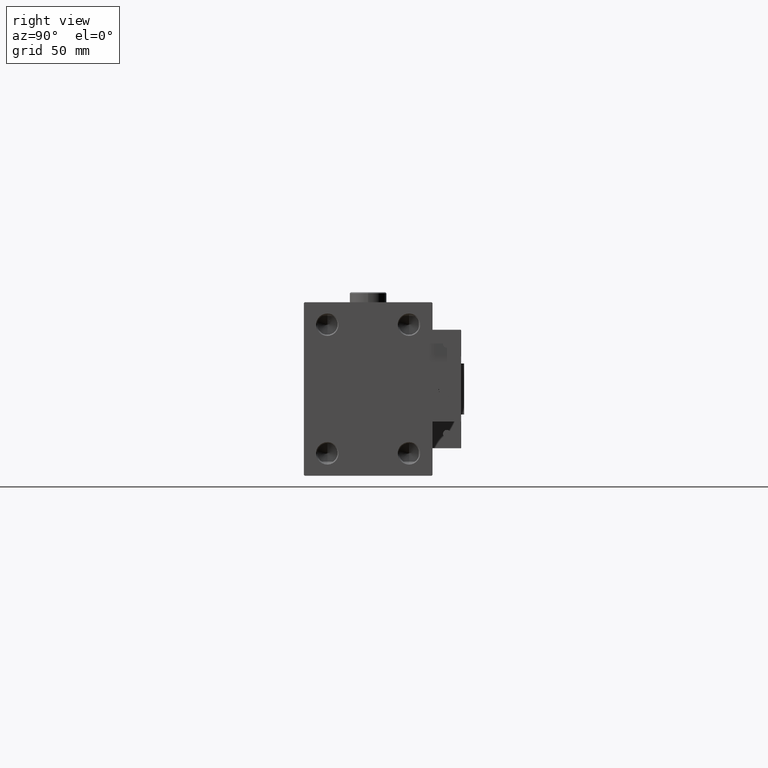
[diagram: clean part render]
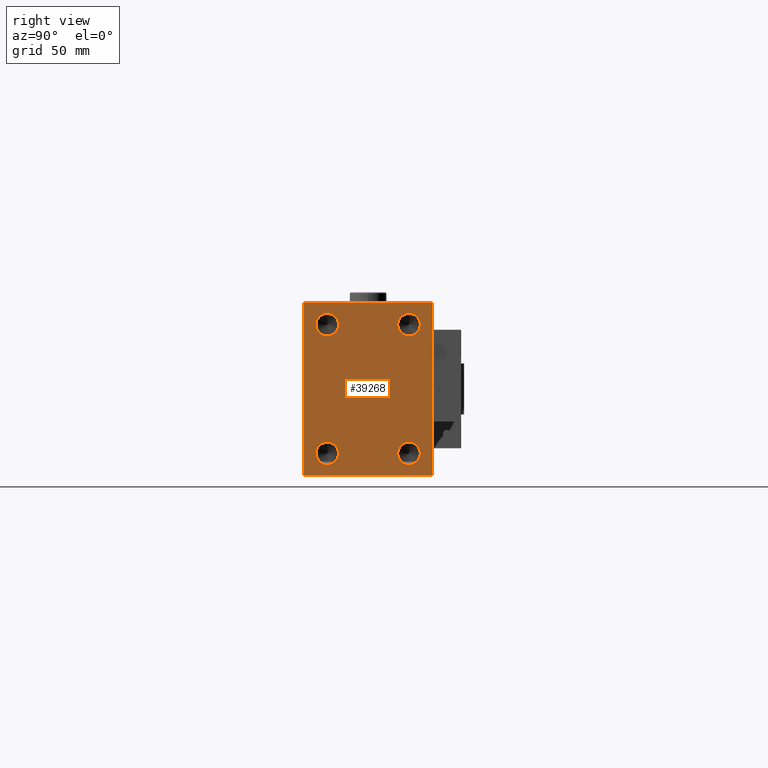
[diagram: same view with one face highlighted and labeled with its STEP entity id]
A machine part, right view. The second image highlights one B-rep face of the part: STEP entity #39268.
In plain terms, the highlighted planar face has unit normal (1, 0, 0).
Its self-contained STEP definition (entity closure, byte-faithful):
#1403 = VERTEX_POINT ( 'NONE', #37232 ) ;
#2244 = CARTESIAN_POINT ( 'NONE',  ( 263.0000000000000000, 36.74999999999909761, 36.75000000000113687 ) ) ;
#3032 = ORIENTED_EDGE ( 'NONE', *, *, #12570, .T. ) ;
#3068 = ORIENTED_EDGE ( 'NONE', *, *, #32331, .F. ) ;
#3200 = PLANE ( 'NONE',  #10464 ) ;
#3679 = AXIS2_PLACEMENT_3D ( 'NONE', #35292, #31049, #18578 ) ;
#4869 = VERTEX_POINT ( 'NONE', #45011 ) ;
#4917 = ORIENTED_EDGE ( 'NONE', *, *, #41886, .F. ) ;
#5029 = ORIENTED_EDGE ( 'NONE', *, *, #52492, .T. ) ;
#5167 = EDGE_LOOP ( 'NONE', ( #36747, #18878, #27751, #3032, #12417, #21081, #39753, #5029 ) ) ;
#5576 = EDGE_CURVE ( 'NONE', #6405, #20057, #34825, .T. ) ;
#6396 = CARTESIAN_POINT ( 'NONE',  ( 263.0000000000000000, -36.75000000000083134, 36.74999999999879208 ) ) ;
#6405 = VERTEX_POINT ( 'NONE', #24512 ) ;
#6707 = LINE ( 'NONE', #35121, #19873 ) ;
#6725 = CARTESIAN_POINT ( 'NONE',  ( 263.0000000000000000, 31.50000000000001421, -41.99999999999997868 ) ) ;
#7141 = CARTESIAN_POINT ( 'NONE',  ( 263.0000000000000000, 19.99999999999999645, -26.00000000000004619 ) ) ;
#7568 = CARTESIAN_POINT ( 'NONE',  ( 263.0000000000000000, 31.50000000000001421, -42.50000000000000711 ) ) ;
#8918 = ORIENTED_EDGE ( 'NONE', *, *, #50925, .F. ) ;
#9533 = DIRECTION ( 'NONE',  ( 0.000000000000000000, 0.000000000000000000, -1.000000000000000000 ) ) ;
#9672 = CARTESIAN_POINT ( 'NONE',  ( 263.0000000000000000, 19.99999999999999645, 31.50000000000000000 ) ) ;
#10367 = CARTESIAN_POINT ( 'NONE',  ( 263.0000000000000000, -20.00000000000000355, 31.50000000000000000 ) ) ;
#10464 = AXIS2_PLACEMENT_3D ( 'NONE', #23903, #48360, #12200 ) ;
#10645 = ORIENTED_EDGE ( 'NONE', *, *, #16796, .F. ) ;
#11292 = DIRECTION ( 'NONE',  ( 0.000000000000000000, -1.632680918566406547E-16, 1.000000000000000000 ) ) ;
#11343 = AXIS2_PLACEMENT_3D ( 'NONE', #12000, #33229, #44437 ) ;
#11617 = EDGE_CURVE ( 'NONE', #4869, #29313, #24806, .T. ) ;
#11830 = VECTOR ( 'NONE', #18109, 1000.000000000000000 ) ;
#12000 = CARTESIAN_POINT ( 'NONE',  ( 263.0000000000000000, 19.99999999999999645, -31.50000000000000000 ) ) ;
#12200 = DIRECTION ( 'NONE',  ( 0.000000000000000000, 0.000000000000000000, -1.000000000000000000 ) ) ;
#12417 = ORIENTED_EDGE ( 'NONE', *, *, #5576, .T. ) ;
#12570 = EDGE_CURVE ( 'NONE', #42742, #6405, #25558, .T. ) ;
#13523 = DIRECTION ( 'NONE',  ( 1.000000000000000000, -0.000000000000000000, -0.000000000000000000 ) ) ;
#14162 = DIRECTION ( 'NONE',  ( 1.000000000000000000, -0.000000000000000000, -0.000000000000000000 ) ) ;
#15505 = VERTEX_POINT ( 'NONE', #21867 ) ;
#16327 = VERTEX_POINT ( 'NONE', #31987 ) ;
#16651 = EDGE_CURVE ( 'NONE', #49942, #39796, #35069, .T. ) ;
#16796 = EDGE_CURVE ( 'NONE', #21577, #47852, #24044, .T. ) ;
#17308 = DIRECTION ( 'NONE',  ( -0.000000000000000000, 0.7071067811865426878, -0.7071067811865524577 ) ) ;
#17442 = VERTEX_POINT ( 'NONE', #47116 ) ;
#17496 = EDGE_CURVE ( 'NONE', #39796, #49942, #30855, .T. ) ;
#17502 = CARTESIAN_POINT ( 'NONE',  ( 263.0000000000000000, -31.50000000000000000, -41.99999999999997158 ) ) ;
#18109 = DIRECTION ( 'NONE',  ( 0.000000000000000000, 1.000000000000000000, 0.000000000000000000 ) ) ;
#18418 = DIRECTION ( 'NONE',  ( 0.000000000000000000, 0.000000000000000000, -1.000000000000000000 ) ) ;
#18442 = DIRECTION ( 'NONE',  ( 0.000000000000000000, 0.000000000000000000, -1.000000000000000000 ) ) ;
#18578 = DIRECTION ( 'NONE',  ( 0.000000000000000000, 0.000000000000000000, -1.000000000000000000 ) ) ;
#18874 = EDGE_CURVE ( 'NONE', #37688, #15505, #25809, .T. ) ;
#18878 = ORIENTED_EDGE ( 'NONE', *, *, #18874, .T. ) ;
#19873 = VECTOR ( 'NONE', #38076, 1000.000000000000000 ) ;
#19925 = FACE_BOUND ( 'NONE', #45086, .T. ) ;
#20057 = VERTEX_POINT ( 'NONE', #24548 ) ;
#20787 = EDGE_CURVE ( 'NONE', #30769, #1403, #31221, .T. ) ;
#21081 = ORIENTED_EDGE ( 'NONE', *, *, #34115, .T. ) ;
#21210 = CARTESIAN_POINT ( 'NONE',  ( 263.0000000000000000, 19.99999999999999645, 26.00000000000004619 ) ) ;
#21235 = DIRECTION ( 'NONE',  ( 0.000000000000000000, 0.000000000000000000, -1.000000000000000000 ) ) ;
#21459 = CARTESIAN_POINT ( 'NONE',  ( 263.0000000000000000, -20.00000000000000355, -31.50000000000000000 ) ) ;
#21558 = DIRECTION ( 'NONE',  ( 0.000000000000000000, -0.7071067811865279218, -0.7071067811865671127 ) ) ;
#21577 = VERTEX_POINT ( 'NONE', #24167 ) ;
#21867 = CARTESIAN_POINT ( 'NONE',  ( 263.0000000000000000, -31.50000000000000000, 41.99999999999990763 ) ) ;
#21982 = EDGE_LOOP ( 'NONE', ( #10645, #3068 ) ) ;
#22440 = DIRECTION ( 'NONE',  ( 1.000000000000000000, -0.000000000000000000, -0.000000000000000000 ) ) ;
#23028 = ORIENTED_EDGE ( 'NONE', *, *, #11617, .F. ) ;
#23903 = CARTESIAN_POINT ( 'NONE',  ( 263.0000000000000000, 0.000000000000000000, 0.000000000000000000 ) ) ;
#24044 = CIRCLE ( 'NONE', #27414, 5.499999999999976907 ) ;
#24167 = CARTESIAN_POINT ( 'NONE',  ( 263.0000000000000000, -20.00000000000000355, 36.99999999999995026 ) ) ;
#24198 = CARTESIAN_POINT ( 'NONE',  ( 263.0000000000000000, 36.74999999999999289, -36.74999999999999289 ) ) ;
#24462 = LINE ( 'NONE', #24198, #46818 ) ;
#24512 = CARTESIAN_POINT ( 'NONE',  ( 263.0000000000000000, -30.99999999999997158, -42.50000000000000711 ) ) ;
#24548 = CARTESIAN_POINT ( 'NONE',  ( 263.0000000000000000, 30.99999999999998579, -42.50000000000000711 ) ) ;
#24806 = CIRCLE ( 'NONE', #50283, 5.499999999999976907 ) ;
#25419 = ORIENTED_EDGE ( 'NONE', *, *, #17496, .F. ) ;
#25492 = AXIS2_PLACEMENT_3D ( 'NONE', #37573, #22440, #18442 ) ;
#25558 = LINE ( 'NONE', #41258, #33327 ) ;
#25809 = LINE ( 'NONE', #6396, #51308 ) ;
#26266 = CARTESIAN_POINT ( 'NONE',  ( 263.0000000000000000, -20.00000000000000355, -31.50000000000000000 ) ) ;
#26415 = DIRECTION ( 'NONE',  ( -0.000000000000000000, -0.7071067811865671127, 0.7071067811865279218 ) ) ;
#26839 = AXIS2_PLACEMENT_3D ( 'NONE', #45696, #13523, #21235 ) ;
#26976 = LINE ( 'NONE', #51179, #47804 ) ;
#27414 = AXIS2_PLACEMENT_3D ( 'NONE', #10367, #31601, #31337 ) ;
#27568 = VECTOR ( 'NONE', #11292, 1000.000000000000000 ) ;
#27751 = ORIENTED_EDGE ( 'NONE', *, *, #38653, .T. ) ;
#29313 = VERTEX_POINT ( 'NONE', #21210 ) ;
#30769 = VERTEX_POINT ( 'NONE', #6725 ) ;
#30855 = CIRCLE ( 'NONE', #11343, 5.499999999999976907 ) ;
#31049 = DIRECTION ( 'NONE',  ( 1.000000000000000000, -0.000000000000000000, -0.000000000000000000 ) ) ;
#31221 = LINE ( 'NONE', #7568, #27568 ) ;
#31337 = DIRECTION ( 'NONE',  ( 0.000000000000000000, 0.000000000000000000, -1.000000000000000000 ) ) ;
#31481 = DIRECTION ( 'NONE',  ( 0.000000000000000000, 0.000000000000000000, -1.000000000000000000 ) ) ;
#31601 = DIRECTION ( 'NONE',  ( 1.000000000000000000, -0.000000000000000000, -0.000000000000000000 ) ) ;
#31987 = CARTESIAN_POINT ( 'NONE',  ( 263.0000000000000000, 30.99999999999991473, 42.49999999999999289 ) ) ;
#32331 = EDGE_CURVE ( 'NONE', #47852, #21577, #44170, .T. ) ;
#32368 = CARTESIAN_POINT ( 'NONE',  ( 263.0000000000000000, -20.00000000000000355, 26.00000000000004619 ) ) ;
#33229 = DIRECTION ( 'NONE',  ( 1.000000000000000000, -0.000000000000000000, -0.000000000000000000 ) ) ;
#33327 = VECTOR ( 'NONE', #17308, 1000.000000000000000 ) ;
#34115 = EDGE_CURVE ( 'NONE', #20057, #30769, #24462, .T. ) ;
#34825 = LINE ( 'NONE', #42319, #11830 ) ;
#34911 = CARTESIAN_POINT ( 'NONE',  ( 263.0000000000000000, 19.99999999999999645, -36.99999999999995026 ) ) ;
#35069 = CIRCLE ( 'NONE', #3679, 5.499999999999976907 ) ;
#35121 = CARTESIAN_POINT ( 'NONE',  ( 263.0000000000000000, 31.50000000000000000, 42.49999999999999289 ) ) ;
#35292 = CARTESIAN_POINT ( 'NONE',  ( 263.0000000000000000, 19.99999999999999645, -31.50000000000000000 ) ) ;
#35850 = FACE_BOUND ( 'NONE', #21982, .T. ) ;
#36747 = ORIENTED_EDGE ( 'NONE', *, *, #41087, .T. ) ;
#36848 = AXIS2_PLACEMENT_3D ( 'NONE', #26266, #42496, #9533 ) ;
#37232 = CARTESIAN_POINT ( 'NONE',  ( 263.0000000000000000, 31.50000000000000000, 41.99999999999994316 ) ) ;
#37344 = CARTESIAN_POINT ( 'NONE',  ( 263.0000000000000000, -30.99999999999994316, 42.49999999999998579 ) ) ;
#37573 = CARTESIAN_POINT ( 'NONE',  ( 263.0000000000000000, -20.00000000000000355, 31.50000000000000000 ) ) ;
#37688 = VERTEX_POINT ( 'NONE', #37344 ) ;
#38076 = DIRECTION ( 'NONE',  ( 0.000000000000000000, -1.000000000000000000, -1.101411730778925171E-16 ) ) ;
#38139 = ORIENTED_EDGE ( 'NONE', *, *, #49015, .F. ) ;
#38635 = LINE ( 'NONE', #2244, #44834 ) ;
#38653 = EDGE_CURVE ( 'NONE', #15505, #42742, #26976, .T. ) ;
#39268 = ADVANCED_FACE ( 'NONE', ( #51836, #35850, #44376, #19925, #39861 ), #3200, .T. ) ;
#39753 = ORIENTED_EDGE ( 'NONE', *, *, #20787, .T. ) ;
#39796 = VERTEX_POINT ( 'NONE', #34911 ) ;
#39861 = FACE_OUTER_BOUND ( 'NONE', #5167, .T. ) ;
#39955 = CARTESIAN_POINT ( 'NONE',  ( 263.0000000000000000, -20.00000000000000355, -36.99999999999995026 ) ) ;
#40417 = DIRECTION ( 'NONE',  ( -0.000000000000000000, 0.7071067811865474617, 0.7071067811865474617 ) ) ;
#40552 = ORIENTED_EDGE ( 'NONE', *, *, #16651, .F. ) ;
#41087 = EDGE_CURVE ( 'NONE', #16327, #37688, #6707, .T. ) ;
#41258 = CARTESIAN_POINT ( 'NONE',  ( 263.0000000000000000, -36.75000000000020606, -36.74999999999970157 ) ) ;
#41886 = EDGE_CURVE ( 'NONE', #52570, #17442, #50350, .T. ) ;
#42319 = CARTESIAN_POINT ( 'NONE',  ( 263.0000000000000000, -31.50000000000000000, -42.50000000000000711 ) ) ;
#42468 = DIRECTION ( 'NONE',  ( 1.000000000000000000, -0.000000000000000000, -0.000000000000000000 ) ) ;
#42496 = DIRECTION ( 'NONE',  ( 1.000000000000000000, -0.000000000000000000, -0.000000000000000000 ) ) ;
#42723 = DIRECTION ( 'NONE',  ( 0.000000000000000000, 0.000000000000000000, -1.000000000000000000 ) ) ;
#42742 = VERTEX_POINT ( 'NONE', #17502 ) ;
#43678 = EDGE_LOOP ( 'NONE', ( #8918, #4917 ) ) ;
#44170 = CIRCLE ( 'NONE', #25492, 5.499999999999976907 ) ;
#44376 = FACE_BOUND ( 'NONE', #43678, .T. ) ;
#44437 = DIRECTION ( 'NONE',  ( 0.000000000000000000, 0.000000000000000000, -1.000000000000000000 ) ) ;
#44834 = VECTOR ( 'NONE', #26415, 1000.000000000000000 ) ;
#45011 = CARTESIAN_POINT ( 'NONE',  ( 263.0000000000000000, 19.99999999999999645, 36.99999999999995026 ) ) ;
#45086 = EDGE_LOOP ( 'NONE', ( #40552, #25419 ) ) ;
#45587 = AXIS2_PLACEMENT_3D ( 'NONE', #21459, #42468, #42723 ) ;
#45696 = CARTESIAN_POINT ( 'NONE',  ( 263.0000000000000000, 19.99999999999999645, 31.50000000000000000 ) ) ;
#46818 = VECTOR ( 'NONE', #40417, 1000.000000000000114 ) ;
#46875 = EDGE_LOOP ( 'NONE', ( #23028, #38139 ) ) ;
#47116 = CARTESIAN_POINT ( 'NONE',  ( 263.0000000000000000, -20.00000000000000355, -26.00000000000004619 ) ) ;
#47804 = VECTOR ( 'NONE', #31481, 1000.000000000000000 ) ;
#47852 = VERTEX_POINT ( 'NONE', #32368 ) ;
#48360 = DIRECTION ( 'NONE',  ( 1.000000000000000000, 0.000000000000000000, 0.000000000000000000 ) ) ;
#49015 = EDGE_CURVE ( 'NONE', #29313, #4869, #49756, .T. ) ;
#49756 = CIRCLE ( 'NONE', #26839, 5.499999999999976907 ) ;
#49942 = VERTEX_POINT ( 'NONE', #7141 ) ;
#50283 = AXIS2_PLACEMENT_3D ( 'NONE', #9672, #14162, #18418 ) ;
#50350 = CIRCLE ( 'NONE', #36848, 5.499999999999976907 ) ;
#50925 = EDGE_CURVE ( 'NONE', #17442, #52570, #52386, .T. ) ;
#51179 = CARTESIAN_POINT ( 'NONE',  ( 263.0000000000000000, -31.50000000000000000, 42.49999999999998579 ) ) ;
#51308 = VECTOR ( 'NONE', #21558, 1000.000000000000000 ) ;
#51836 = FACE_BOUND ( 'NONE', #46875, .T. ) ;
#52386 = CIRCLE ( 'NONE', #45587, 5.499999999999976907 ) ;
#52492 = EDGE_CURVE ( 'NONE', #1403, #16327, #38635, .T. ) ;
#52570 = VERTEX_POINT ( 'NONE', #39955 ) ;